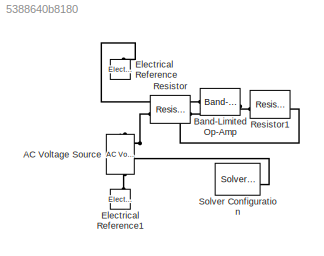
MODEL slx_5388640b8180
KIND model
CONFIG AbsTol = auto
CONFIG EnableMultiTasking = off
CONFIG FixedStep = auto
CONFIG MaxStep = auto
CONFIG MinStep = auto
CONFIG RelTol = 1e-3
CONFIG SampleTimeConstraint = Unconstrained
CONFIG SolverName = VariableStepAuto
CONFIG StartTime = 0.0
CONFIG StopTime = 10.0
BLOCK [Reference] AC Voltage Source  REF=fl_lib/Electrical/Electrical Sources/AC Voltage Source
  NameLocation = right
  SourceBlock = fl_lib/Electrical/Electrical Sources/AC Voltage Source
  SourceType = AC Voltage Source
BLOCK [Reference] Band-Limited Op-Amp  REF=ee_lib/Integrated Circuits/Band-Limited Op-Amp
  SourceBlock = ee_lib/Integrated Circuits/Band-Limited Op-Amp
  SourceType = Band-Limited Op-Amp
BLOCK [Reference] Electrical Reference  REF=fl_lib/Electrical/Electrical Elements/Electrical Reference
  NameLocation = right
  SourceBlock = fl_lib/Electrical/Electrical Elements/Electrical Reference
  SourceType = Electrical Reference
BLOCK [Reference] Electrical Reference1  REF=fl_lib/Electrical/Electrical Elements/Electrical Reference
  NameLocation = right
  SourceBlock = fl_lib/Electrical/Electrical Elements/Electrical Reference
  SourceType = Electrical Reference
BLOCK [Reference] Resistor  REF=ee_lib/Passive/Resistor
  SourceBlock = ee_lib/Passive/Resistor
  SourceType = Resistor
BLOCK [Reference] Resistor1  REF=ee_lib/Passive/Resistor
  SourceBlock = ee_lib/Passive/Resistor
  SourceType = Resistor
BLOCK [Reference] Solver Configuration  REF=nesl_utility/Solver
Configuration
  SourceBlock = nesl_utility/Solver\nConfiguration
  SourceType = Solver\nConfiguration
PNET net1: AC Voltage Source:LConn1 -- Resistor:LConn1 -- Solver Configuration:RConn1
PLINE AC Voltage Source:RConn1 -- Electrical Reference1:LConn1
PLINE Band-Limited Op-Amp:LConn1 -- Electrical Reference:LConn1
PNET net2: Band-Limited Op-Amp:LConn2 -- Resistor1:RConn1 -- Resistor:RConn1
PLINE Band-Limited Op-Amp:RConn1 -- Resistor1:LConn1
note: PNET lines group multi-terminal physical nets as a canonical sorted terminal list (undirected conserving connections); 2-terminal nets keep the pairwise PLINE form
